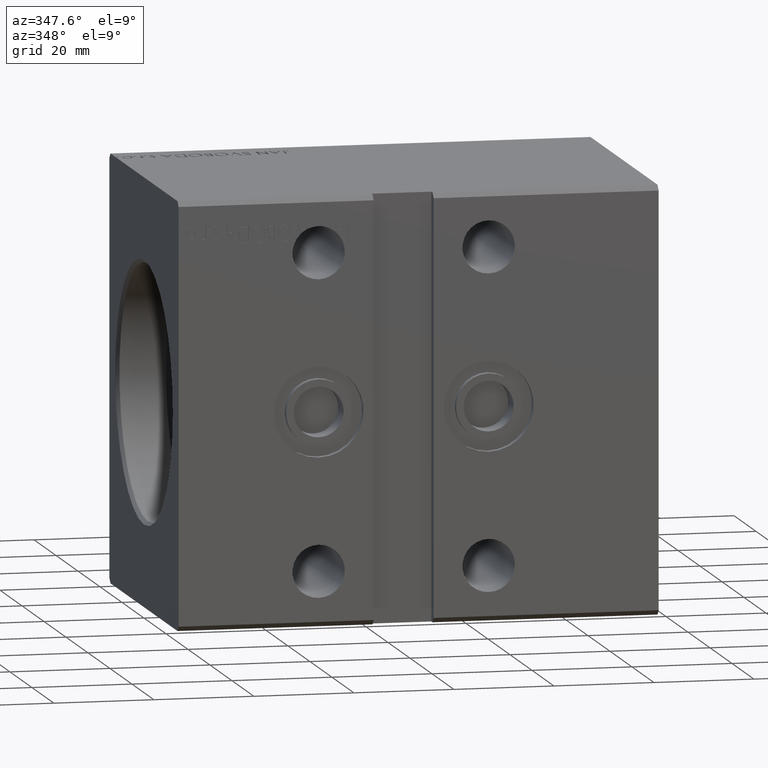
[diagram: clean part render]
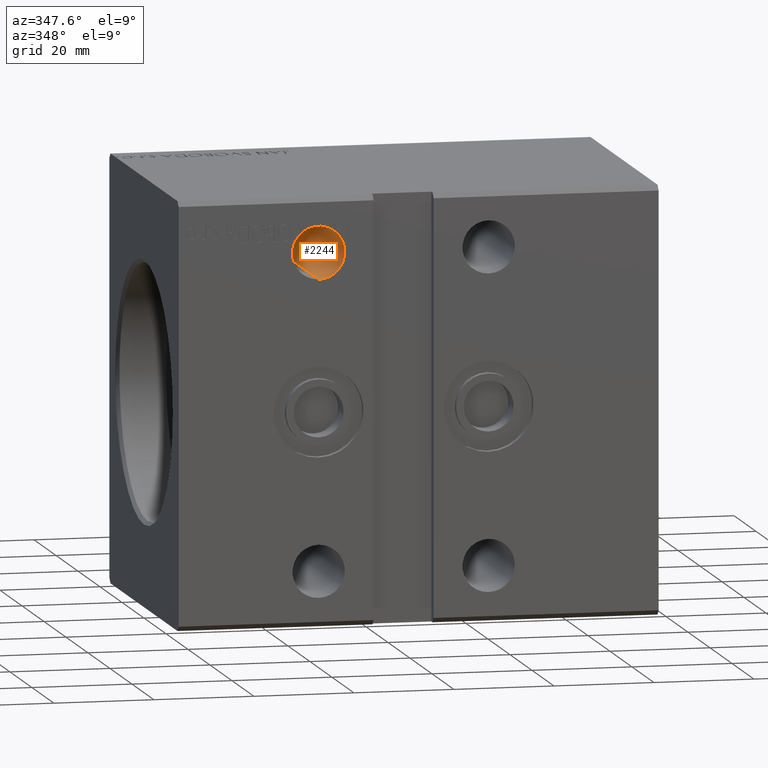
[diagram: same view with one face highlighted and labeled with its STEP entity id]
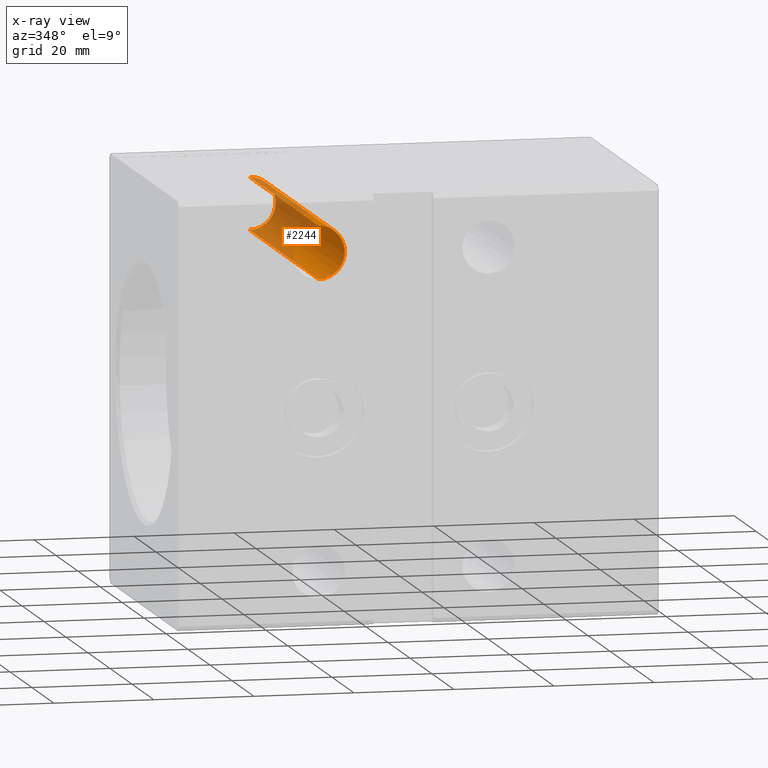
[diagram: x-ray of the same camera — body ghosted, the highlighted face saturated]
A machine part, auxiliary view. The second image highlights one B-rep face of the part: STEP entity #2244.
The next image is the same camera in x-ray: the body ghosted, the highlighted face saturated — about 48% of this face is hidden behind the body in this view.
In plain terms, the highlighted cylindrical surface (edge-blend (fillet) strip) has radius 5.25 mm, axis along (-0, -1, -0).
Its self-contained STEP definition (entity closure, byte-faithful):
#34 = VERTEX_POINT ( 'NONE', #8676 ) ;
#603 = DIRECTION ( 'NONE',  ( 0.000000000000000000, 1.000000000000000000, 5.507058653894625853E-17 ) ) ;
#652 = DIRECTION ( 'NONE',  ( 0.000000000000000000, -1.000000000000000000, -5.507058653894625853E-17 ) ) ;
#909 = DIRECTION ( 'NONE',  ( 0.000000000000000000, 1.000000000000000000, 5.507058653894625853E-17 ) ) ;
#989 = ORIENTED_EDGE ( 'NONE', *, *, #18949, .T. ) ;
#1109 = EDGE_CURVE ( 'NONE', #9738, #13273, #14543, .T. ) ;
#1222 = CARTESIAN_POINT ( 'NONE',  ( 28.26923076923077360, -31.50000000000001421, 36.74309210227126243 ) ) ;
#1241 = EDGE_CURVE ( 'NONE', #9738, #31118, #5868, .T. ) ;
#1647 = CARTESIAN_POINT ( 'NONE',  ( 30.01923076923077005, -31.50000000000001421, 36.34615384615383249 ) ) ;
#1782 = CIRCLE ( 'NONE', #14904, 5.249999999999997335 ) ;
#2122 = CARTESIAN_POINT ( 'NONE',  ( 30.01923076923077005, 31.50000000000002842, 36.34615384615383959 ) ) ;
#2244 = ADVANCED_FACE ( 'NONE', ( #14914 ), #17380, .F. ) ;
#2628 = CARTESIAN_POINT ( 'NONE',  ( 31.92673162601505155, -31.50000000000000000, 34.98472075455883612 ) ) ;
#3488 = EDGE_CURVE ( 'NONE', #19547, #33130, #24211, .T. ) ;
#3490 = VECTOR ( 'NONE', #40112, 1000.000000000000000 ) ;
#3816 = VERTEX_POINT ( 'NONE', #1647 ) ;
#4604 = DIRECTION ( 'NONE',  ( -0.000000000000000000, -1.000000000000000000, -5.507058653894625853E-17 ) ) ;
#4856 = CARTESIAN_POINT ( 'NONE',  ( 28.86302342089060247, -31.30000000000002203, 36.67857997669189984 ) ) ;
#5041 = DIRECTION ( 'NONE',  ( -0.000000000000000000, -1.000000000000000000, -5.507058653894625853E-17 ) ) ;
#5081 = VERTEX_POINT ( 'NONE', #4856 ) ;
#5154 = CARTESIAN_POINT ( 'NONE',  ( 32.20134712561158352, 31.50000000000002842, 34.64820303190808204 ) ) ;
#5174 = LINE ( 'NONE', #34136, #3490 ) ;
#5252 = DIRECTION ( 'NONE',  ( -0.000000000000000000, -1.000000000000000000, -5.507058653894625853E-17 ) ) ;
#5296 = DIRECTION ( 'NONE',  ( 0.000000000000000000, 1.000000000000000000, 5.507058653894625853E-17 ) ) ;
#5436 = CARTESIAN_POINT ( 'NONE',  ( 27.99999999999999645, 31.50000000000002842, 31.50000000000000000 ) ) ;
#5868 = CIRCLE ( 'NONE', #40020, 5.249999999999997335 ) ;
#5995 = VERTEX_POINT ( 'NONE', #20532 ) ;
#6678 = VECTOR ( 'NONE', #5296, 1000.000000000000000 ) ;
#6696 = DIRECTION ( 'NONE',  ( 0.000000000000000000, 1.000000000000000000, -0.000000000000000000 ) ) ;
#7057 = VERTEX_POINT ( 'NONE', #13749 ) ;
#7418 = DIRECTION ( 'NONE',  ( 0.000000000000000000, 1.000000000000000000, 5.507058653894625853E-17 ) ) ;
#7448 = AXIS2_PLACEMENT_3D ( 'NONE', #12187, #27815, #37663 ) ;
#7555 = EDGE_CURVE ( 'NONE', #10558, #3816, #20529, .T. ) ;
#7905 = EDGE_CURVE ( 'NONE', #32388, #5995, #23842, .T. ) ;
#8527 = EDGE_LOOP ( 'NONE', ( #21962, #32970, #11999, #22720, #33938, #26230, #26033, #10509, #13538, #33692, #31227, #27487, #30898, #14635, #12460, #32337, #30301, #12922, #989, #38862 ) ) ;
#8596 = EDGE_CURVE ( 'NONE', #7057, #13161, #27817, .T. ) ;
#8605 = CARTESIAN_POINT ( 'NONE',  ( 32.20134712561158352, -31.29999999999999361, 34.64820303190808204 ) ) ;
#8676 = CARTESIAN_POINT ( 'NONE',  ( 27.99999999999999645, -31.50000000000000000, 36.74999999999999289 ) ) ;
#8748 = AXIS2_PLACEMENT_3D ( 'NONE', #16684, #652, #10521 ) ;
#8931 = VERTEX_POINT ( 'NONE', #21585 ) ;
#9315 = CARTESIAN_POINT ( 'NONE',  ( 27.99999999999999645, 31.50000000000002842, 26.25000000000000355 ) ) ;
#9423 = VECTOR ( 'NONE', #909, 1000.000000000000000 ) ;
#9738 = VERTEX_POINT ( 'NONE', #18314 ) ;
#10199 = CIRCLE ( 'NONE', #35785, 5.249999999999997335 ) ;
#10250 = DIRECTION ( 'NONE',  ( 0.000000000000000000, 0.000000000000000000, 1.000000000000000000 ) ) ;
#10509 = ORIENTED_EDGE ( 'NONE', *, *, #17190, .F. ) ;
#10521 = DIRECTION ( 'NONE',  ( 0.000000000000000000, 0.000000000000000000, -1.000000000000000000 ) ) ;
#10558 = VERTEX_POINT ( 'NONE', #31457 ) ;
#11028 = CARTESIAN_POINT ( 'NONE',  ( 28.26923076923077360, 31.50000000000002842, 36.74309210227126243 ) ) ;
#11052 = DIRECTION ( 'NONE',  ( -0.000000000000000000, -1.000000000000000000, -5.507058653894625853E-17 ) ) ;
#11532 = LINE ( 'NONE', #5154, #9423 ) ;
#11999 = ORIENTED_EDGE ( 'NONE', *, *, #21302, .T. ) ;
#12088 = VECTOR ( 'NONE', #603, 1000.000000000000000 ) ;
#12110 = CARTESIAN_POINT ( 'NONE',  ( 30.01923076923077005, -31.30000000000002203, 36.34615384615383959 ) ) ;
#12187 = CARTESIAN_POINT ( 'NONE',  ( 27.99999999999999645, -31.50000000000000000, 31.49999999999999289 ) ) ;
#12460 = ORIENTED_EDGE ( 'NONE', *, *, #26473, .T. ) ;
#12920 = EDGE_CURVE ( 'NONE', #24184, #15664, #5174, .T. ) ;
#12922 = ORIENTED_EDGE ( 'NONE', *, *, #38824, .F. ) ;
#13035 = DIRECTION ( 'NONE',  ( 0.000000000000000000, 0.000000000000000000, 1.000000000000000000 ) ) ;
#13161 = VERTEX_POINT ( 'NONE', #21359 ) ;
#13273 = VERTEX_POINT ( 'NONE', #27328 ) ;
#13538 = ORIENTED_EDGE ( 'NONE', *, *, #3488, .T. ) ;
#13749 = CARTESIAN_POINT ( 'NONE',  ( 32.20134712561158352, -31.50000000000001421, 34.64820303190807493 ) ) ;
#14027 = DIRECTION ( 'NONE',  ( 0.000000000000000000, 0.000000000000000000, 1.000000000000000000 ) ) ;
#14543 = LINE ( 'NONE', #26678, #22255 ) ;
#14607 = EDGE_CURVE ( 'NONE', #7057, #31118, #11532, .T. ) ;
#14635 = ORIENTED_EDGE ( 'NONE', *, *, #31941, .F. ) ;
#14674 = LINE ( 'NONE', #2122, #32450 ) ;
#14818 = DIRECTION ( 'NONE',  ( 0.000000000000000000, 0.000000000000000000, 1.000000000000000000 ) ) ;
#14878 = CIRCLE ( 'NONE', #37836, 5.249999999999997335 ) ;
#14904 = AXIS2_PLACEMENT_3D ( 'NONE', #36195, #27149, #17091 ) ;
#14914 = FACE_OUTER_BOUND ( 'NONE', #8527, .T. ) ;
#15167 = CARTESIAN_POINT ( 'NONE',  ( 31.92673162601505155, 31.50000000000002842, 34.98472075455884323 ) ) ;
#15664 = VERTEX_POINT ( 'NONE', #24272 ) ;
#16684 = CARTESIAN_POINT ( 'NONE',  ( 27.99999999999999645, 31.50000000000002842, 31.50000000000000000 ) ) ;
#17091 = DIRECTION ( 'NONE',  ( 0.000000000000000000, 0.000000000000000000, 1.000000000000000000 ) ) ;
#17190 = EDGE_CURVE ( 'NONE', #19547, #13273, #17322, .T. ) ;
#17322 = CIRCLE ( 'NONE', #21257, 5.249999999999997335 ) ;
#17380 = CYLINDRICAL_SURFACE ( 'NONE', #21731, 5.249999999999997335 ) ;
#18314 = CARTESIAN_POINT ( 'NONE',  ( 31.99260834176379831, -31.30000000000002203, 34.90904365317871338 ) ) ;
#18516 = VERTEX_POINT ( 'NONE', #1222 ) ;
#18949 = EDGE_CURVE ( 'NONE', #30915, #18516, #20888, .T. ) ;
#19547 = VERTEX_POINT ( 'NONE', #2628 ) ;
#20484 = EDGE_CURVE ( 'NONE', #34, #18516, #10199, .T. ) ;
#20529 = CIRCLE ( 'NONE', #25789, 5.249999999999997335 ) ;
#20532 = CARTESIAN_POINT ( 'NONE',  ( 27.99999999999999645, 31.50000000000002842, 36.75000000000000000 ) ) ;
#20773 = CIRCLE ( 'NONE', #29943, 5.249999999999997335 ) ;
#20888 = LINE ( 'NONE', #11028, #22597 ) ;
#21257 = AXIS2_PLACEMENT_3D ( 'NONE', #29813, #39075, #26939 ) ;
#21302 = EDGE_CURVE ( 'NONE', #32388, #13161, #28847, .T. ) ;
#21359 = CARTESIAN_POINT ( 'NONE',  ( 27.99999999999999645, -31.50000000000000000, 26.25000000000000000 ) ) ;
#21585 = CARTESIAN_POINT ( 'NONE',  ( 30.28846153846154010, -31.50000000000000000, 36.22498082398035990 ) ) ;
#21693 = DIRECTION ( 'NONE',  ( -0.000000000000000000, -1.000000000000000000, -5.507058653894625853E-17 ) ) ;
#21731 = AXIS2_PLACEMENT_3D ( 'NONE', #5436, #5041, #29704 ) ;
#21962 = ORIENTED_EDGE ( 'NONE', *, *, #40213, .F. ) ;
#22141 = VECTOR ( 'NONE', #21693, 1000.000000000000000 ) ;
#22255 = VECTOR ( 'NONE', #11052, 1000.000000000000000 ) ;
#22597 = VECTOR ( 'NONE', #5252, 1000.000000000000000 ) ;
#22720 = ORIENTED_EDGE ( 'NONE', *, *, #8596, .F. ) ;
#22977 = DIRECTION ( 'NONE',  ( -0.000000000000000000, 1.000000000000000000, 0.000000000000000000 ) ) ;
#23133 = EDGE_CURVE ( 'NONE', #8931, #38445, #34752, .T. ) ;
#23842 = CIRCLE ( 'NONE', #8748, 5.249999999999997335 ) ;
#24115 = EDGE_CURVE ( 'NONE', #10558, #5081, #28560, .T. ) ;
#24184 = VERTEX_POINT ( 'NONE', #29166 ) ;
#24211 = LINE ( 'NONE', #15167, #6678 ) ;
#24272 = CARTESIAN_POINT ( 'NONE',  ( 31.49410893708456172, -31.50000000000001421, 35.41838011629623395 ) ) ;
#25613 = DIRECTION ( 'NONE',  ( 0.000000000000000000, 0.000000000000000000, 1.000000000000000000 ) ) ;
#25789 = AXIS2_PLACEMENT_3D ( 'NONE', #37101, #34016, #13035 ) ;
#25911 = CARTESIAN_POINT ( 'NONE',  ( 28.26923076923077360, -31.30000000000002203, 36.74309210227126243 ) ) ;
#26033 = ORIENTED_EDGE ( 'NONE', *, *, #1109, .T. ) ;
#26230 = ORIENTED_EDGE ( 'NONE', *, *, #1241, .F. ) ;
#26473 = EDGE_CURVE ( 'NONE', #31827, #3816, #14674, .T. ) ;
#26678 = CARTESIAN_POINT ( 'NONE',  ( 31.99260834176379831, 31.50000000000002842, 34.90904365317871338 ) ) ;
#26939 = DIRECTION ( 'NONE',  ( 0.000000000000000000, 0.000000000000000000, 1.000000000000000000 ) ) ;
#27149 = DIRECTION ( 'NONE',  ( 0.000000000000000000, 1.000000000000000000, 0.000000000000000000 ) ) ;
#27263 = LINE ( 'NONE', #30539, #22141 ) ;
#27328 = CARTESIAN_POINT ( 'NONE',  ( 31.99260834176379831, -31.50000000000000000, 34.90904365317870628 ) ) ;
#27487 = ORIENTED_EDGE ( 'NONE', *, *, #32013, .F. ) ;
#27678 = CARTESIAN_POINT ( 'NONE',  ( 31.92673162601505155, -31.30000000000002203, 34.98472075455884323 ) ) ;
#27815 = DIRECTION ( 'NONE',  ( -0.000000000000000000, 1.000000000000000000, 0.000000000000000000 ) ) ;
#27817 = CIRCLE ( 'NONE', #7448, 5.249999999999997335 ) ;
#28560 = LINE ( 'NONE', #32451, #12088 ) ;
#28630 = CIRCLE ( 'NONE', #33230, 5.249999999999997335 ) ;
#28847 = LINE ( 'NONE', #9315, #35138 ) ;
#29047 = DIRECTION ( 'NONE',  ( -0.000000000000000000, -1.000000000000000000, -5.507058653894625853E-17 ) ) ;
#29166 = CARTESIAN_POINT ( 'NONE',  ( 31.49410893708454751, -31.29999999999999361, 35.41838011629624816 ) ) ;
#29547 = CARTESIAN_POINT ( 'NONE',  ( 27.99999999999999645, -31.30000000000002203, 31.50000000000000000 ) ) ;
#29704 = DIRECTION ( 'NONE',  ( 0.000000000000000000, 0.000000000000000000, -1.000000000000000000 ) ) ;
#29813 = CARTESIAN_POINT ( 'NONE',  ( 27.99999999999999645, -31.50000000000000000, 31.49999999999999289 ) ) ;
#29943 = AXIS2_PLACEMENT_3D ( 'NONE', #38613, #22977, #35521 ) ;
#30219 = DIRECTION ( 'NONE',  ( 0.000000000000000000, 1.000000000000000000, -0.000000000000000000 ) ) ;
#30301 = ORIENTED_EDGE ( 'NONE', *, *, #24115, .T. ) ;
#30539 = CARTESIAN_POINT ( 'NONE',  ( 27.99999999999999645, 31.50000000000002842, 36.75000000000000000 ) ) ;
#30898 = ORIENTED_EDGE ( 'NONE', *, *, #23133, .T. ) ;
#30915 = VERTEX_POINT ( 'NONE', #25911 ) ;
#31026 = CARTESIAN_POINT ( 'NONE',  ( 27.99999999999999645, -31.29999999999999361, 31.50000000000000000 ) ) ;
#31118 = VERTEX_POINT ( 'NONE', #8605 ) ;
#31227 = ORIENTED_EDGE ( 'NONE', *, *, #12920, .T. ) ;
#31457 = CARTESIAN_POINT ( 'NONE',  ( 28.86302342089060957, -31.50000000000000000, 36.67857997669189274 ) ) ;
#31827 = VERTEX_POINT ( 'NONE', #12110 ) ;
#31941 = EDGE_CURVE ( 'NONE', #31827, #38445, #28630, .T. ) ;
#32013 = EDGE_CURVE ( 'NONE', #8931, #15664, #20773, .T. ) ;
#32337 = ORIENTED_EDGE ( 'NONE', *, *, #7555, .F. ) ;
#32388 = VERTEX_POINT ( 'NONE', #34199 ) ;
#32450 = VECTOR ( 'NONE', #4604, 1000.000000000000000 ) ;
#32451 = CARTESIAN_POINT ( 'NONE',  ( 28.86302342089060247, 31.50000000000002842, 36.67857997669189984 ) ) ;
#32532 = DIRECTION ( 'NONE',  ( -0.000000000000000000, 1.000000000000000000, 0.000000000000000000 ) ) ;
#32970 = ORIENTED_EDGE ( 'NONE', *, *, #7905, .F. ) ;
#33130 = VERTEX_POINT ( 'NONE', #27678 ) ;
#33230 = AXIS2_PLACEMENT_3D ( 'NONE', #29547, #39013, #10250 ) ;
#33692 = ORIENTED_EDGE ( 'NONE', *, *, #37425, .F. ) ;
#33938 = ORIENTED_EDGE ( 'NONE', *, *, #14607, .T. ) ;
#34016 = DIRECTION ( 'NONE',  ( -0.000000000000000000, 1.000000000000000000, 0.000000000000000000 ) ) ;
#34136 = CARTESIAN_POINT ( 'NONE',  ( 31.49410893708456172, 31.50000000000002842, 35.41838011629624106 ) ) ;
#34199 = CARTESIAN_POINT ( 'NONE',  ( 27.99999999999999645, 31.50000000000002842, 26.25000000000000355 ) ) ;
#34214 = CARTESIAN_POINT ( 'NONE',  ( 30.28846153846154010, -31.30000000000002203, 36.22498082398036701 ) ) ;
#34752 = LINE ( 'NONE', #35573, #38787 ) ;
#35138 = VECTOR ( 'NONE', #29047, 1000.000000000000000 ) ;
#35408 = CARTESIAN_POINT ( 'NONE',  ( 27.99999999999999645, -31.50000000000000000, 31.49999999999999289 ) ) ;
#35521 = DIRECTION ( 'NONE',  ( 0.000000000000000000, 0.000000000000000000, 1.000000000000000000 ) ) ;
#35573 = CARTESIAN_POINT ( 'NONE',  ( 30.28846153846154010, 31.50000000000002842, 36.22498082398036701 ) ) ;
#35785 = AXIS2_PLACEMENT_3D ( 'NONE', #35408, #32532, #14027 ) ;
#36195 = CARTESIAN_POINT ( 'NONE',  ( 27.99999999999999645, -31.30000000000002203, 31.50000000000000000 ) ) ;
#37101 = CARTESIAN_POINT ( 'NONE',  ( 27.99999999999999645, -31.50000000000000000, 31.49999999999999289 ) ) ;
#37425 = EDGE_CURVE ( 'NONE', #24184, #33130, #14878, .T. ) ;
#37663 = DIRECTION ( 'NONE',  ( 0.000000000000000000, 0.000000000000000000, 1.000000000000000000 ) ) ;
#37836 = AXIS2_PLACEMENT_3D ( 'NONE', #31026, #30219, #14818 ) ;
#38445 = VERTEX_POINT ( 'NONE', #34214 ) ;
#38563 = CARTESIAN_POINT ( 'NONE',  ( 27.99999999999999645, -31.29999999999999361, 31.50000000000000000 ) ) ;
#38613 = CARTESIAN_POINT ( 'NONE',  ( 27.99999999999999645, -31.50000000000000000, 31.49999999999999289 ) ) ;
#38787 = VECTOR ( 'NONE', #7418, 1000.000000000000000 ) ;
#38824 = EDGE_CURVE ( 'NONE', #30915, #5081, #1782, .T. ) ;
#38862 = ORIENTED_EDGE ( 'NONE', *, *, #20484, .F. ) ;
#39013 = DIRECTION ( 'NONE',  ( 0.000000000000000000, 1.000000000000000000, 0.000000000000000000 ) ) ;
#39075 = DIRECTION ( 'NONE',  ( -0.000000000000000000, 1.000000000000000000, 0.000000000000000000 ) ) ;
#40020 = AXIS2_PLACEMENT_3D ( 'NONE', #38563, #6696, #25613 ) ;
#40112 = DIRECTION ( 'NONE',  ( -0.000000000000000000, -1.000000000000000000, -5.507058653894625853E-17 ) ) ;
#40213 = EDGE_CURVE ( 'NONE', #5995, #34, #27263, .T. ) ;